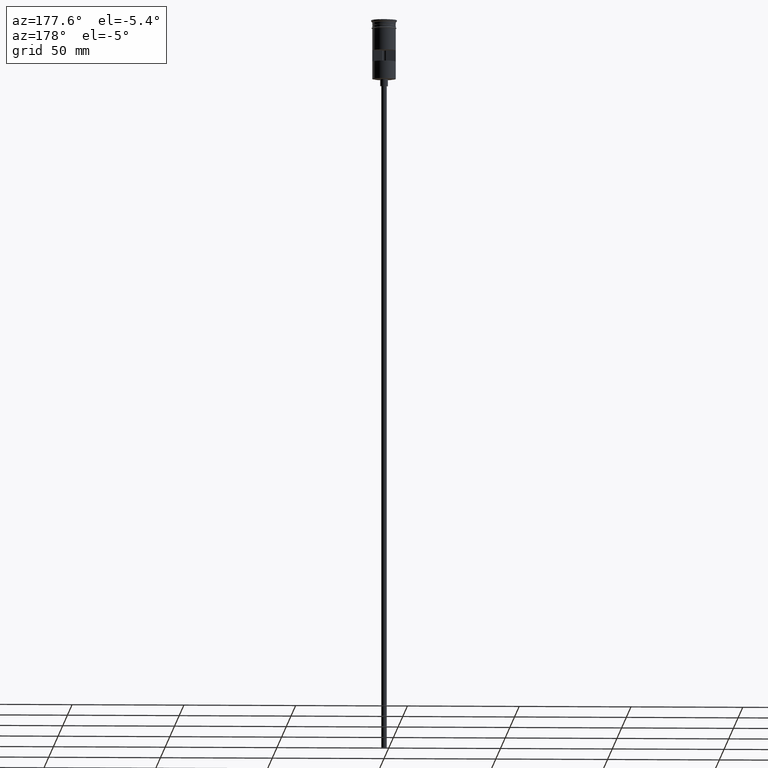
[diagram: clean part render]
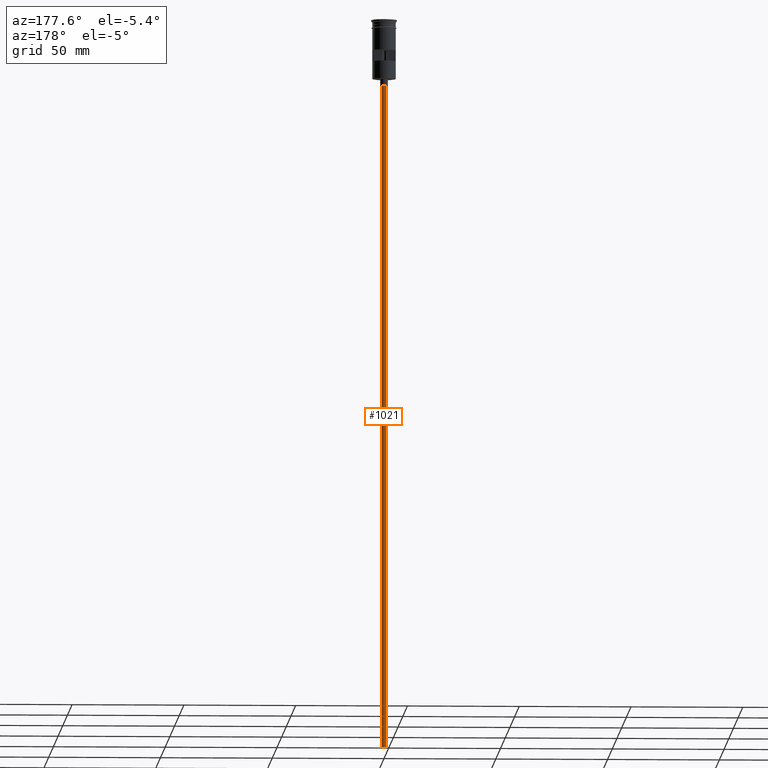
[diagram: same view with one face highlighted and labeled with its STEP entity id]
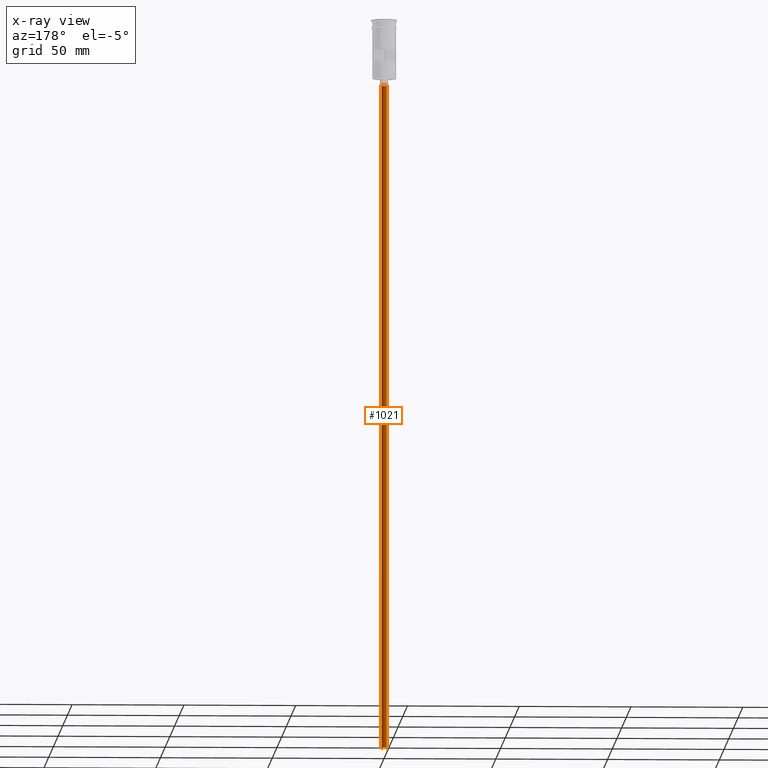
[diagram: x-ray of the same camera — body ghosted, the highlighted face saturated]
A machine part, auxiliary view. The second image highlights one B-rep face of the part: STEP entity #1021.
The next image is the same camera in x-ray: the body ghosted, the highlighted face saturated — about 0% of this face is hidden behind the body in this view.
In plain terms, the highlighted cylindrical surface (edge-blend (fillet) strip) has radius 1.25 mm, axis along (-0, -0, 1).
Its self-contained STEP definition (entity closure, byte-faithful):
#3 = DIRECTION ( 'NONE',  ( -0.000000000000000000, -0.000000000000000000, 1.000000000000000000 ) ) ;
#216 = ORIENTED_EDGE ( 'NONE', *, *, #226, .T. ) ;
#218 = VERTEX_POINT ( 'NONE', #461 ) ;
#226 = EDGE_CURVE ( 'NONE', #1423, #340, #904, .T. ) ;
#251 = FACE_OUTER_BOUND ( 'NONE', #1300, .T. ) ;
#267 = DIRECTION ( 'NONE',  ( -0.000000000000000000, -0.000000000000000000, 1.000000000000000000 ) ) ;
#279 = AXIS2_PLACEMENT_3D ( 'NONE', #645, #267, #619 ) ;
#340 = VERTEX_POINT ( 'NONE', #650 ) ;
#358 = ORIENTED_EDGE ( 'NONE', *, *, #380, .T. ) ;
#380 = EDGE_CURVE ( 'NONE', #1556, #1423, #1485, .T. ) ;
#461 = CARTESIAN_POINT ( 'NONE',  ( 1.250000000000000000, 0.000000000000000000, -326.5000000000000000 ) ) ;
#489 = CARTESIAN_POINT ( 'NONE',  ( -1.250000000000000000, 1.530808498934191571E-16, -326.5000000000000000 ) ) ;
#498 = CYLINDRICAL_SURFACE ( 'NONE', #279, 1.250000000000000000 ) ;
#567 = VECTOR ( 'NONE', #3, 1000.000000000000000 ) ;
#619 = DIRECTION ( 'NONE',  ( 1.000000000000000000, 0.000000000000000000, 0.000000000000000000 ) ) ;
#641 = ORIENTED_EDGE ( 'NONE', *, *, #1309, .F. ) ;
#645 = CARTESIAN_POINT ( 'NONE',  ( 0.000000000000000000, 0.000000000000000000, -326.5000000000000000 ) ) ;
#650 = CARTESIAN_POINT ( 'NONE',  ( 1.250000000000000000, 0.000000000000000000, -29.50000000000000000 ) ) ;
#704 = CARTESIAN_POINT ( 'NONE',  ( 0.000000000000000000, 0.000000000000000000, -326.5000000000000000 ) ) ;
#737 = DIRECTION ( 'NONE',  ( -0.000000000000000000, -0.000000000000000000, 1.000000000000000000 ) ) ;
#777 = CARTESIAN_POINT ( 'NONE',  ( -1.250000000000000000, 1.530808498934191571E-16, -326.5000000000000000 ) ) ;
#843 = DIRECTION ( 'NONE',  ( 0.000000000000000000, 0.000000000000000000, -1.000000000000000000 ) ) ;
#904 = CIRCLE ( 'NONE', #1464, 1.250000000000000000 ) ;
#923 = EDGE_CURVE ( 'NONE', #1556, #218, #1048, .T. ) ;
#1021 = ADVANCED_FACE ( 'NONE', ( #251 ), #498, .T. ) ;
#1040 = ORIENTED_EDGE ( 'NONE', *, *, #923, .F. ) ;
#1048 = CIRCLE ( 'NONE', #1183, 1.250000000000000000 ) ;
#1052 = VECTOR ( 'NONE', #737, 1000.000000000000000 ) ;
#1115 = CARTESIAN_POINT ( 'NONE',  ( 1.250000000000000000, 0.000000000000000000, -326.5000000000000000 ) ) ;
#1183 = AXIS2_PLACEMENT_3D ( 'NONE', #704, #1204, #1348 ) ;
#1204 = DIRECTION ( 'NONE',  ( 0.000000000000000000, 0.000000000000000000, -1.000000000000000000 ) ) ;
#1300 = EDGE_LOOP ( 'NONE', ( #1040, #358, #216, #641 ) ) ;
#1309 = EDGE_CURVE ( 'NONE', #218, #340, #1462, .T. ) ;
#1347 = DIRECTION ( 'NONE',  ( -1.000000000000000000, 0.000000000000000000, 0.000000000000000000 ) ) ;
#1348 = DIRECTION ( 'NONE',  ( -1.000000000000000000, 0.000000000000000000, 0.000000000000000000 ) ) ;
#1413 = CARTESIAN_POINT ( 'NONE',  ( -1.250000000000000000, 1.530808498934191571E-16, -29.50000000000000000 ) ) ;
#1423 = VERTEX_POINT ( 'NONE', #1413 ) ;
#1459 = CARTESIAN_POINT ( 'NONE',  ( 0.000000000000000000, 0.000000000000000000, -29.50000000000000000 ) ) ;
#1462 = LINE ( 'NONE', #1115, #567 ) ;
#1464 = AXIS2_PLACEMENT_3D ( 'NONE', #1459, #843, #1347 ) ;
#1485 = LINE ( 'NONE', #489, #1052 ) ;
#1556 = VERTEX_POINT ( 'NONE', #777 ) ;